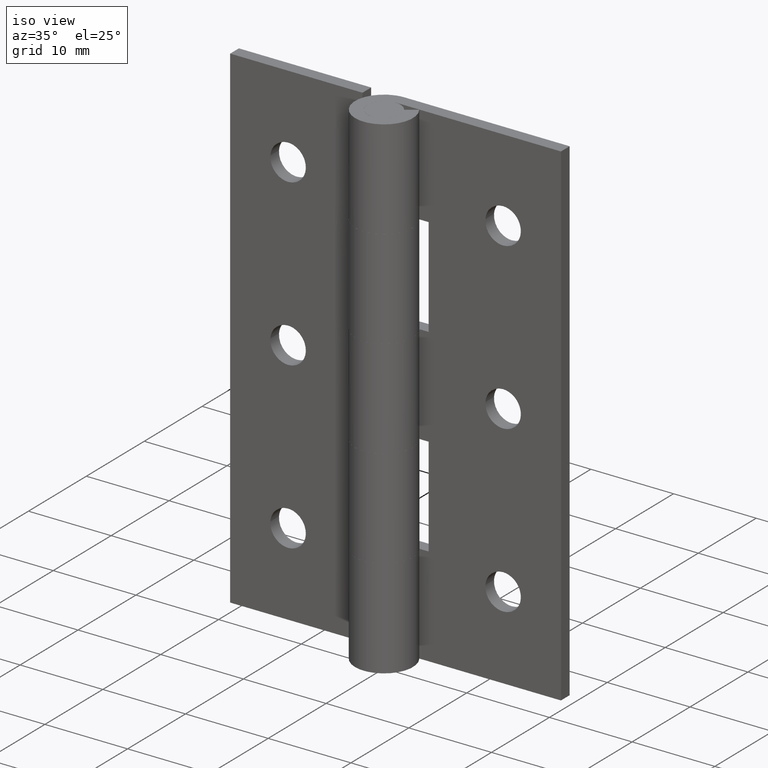
[diagram: clean part render]
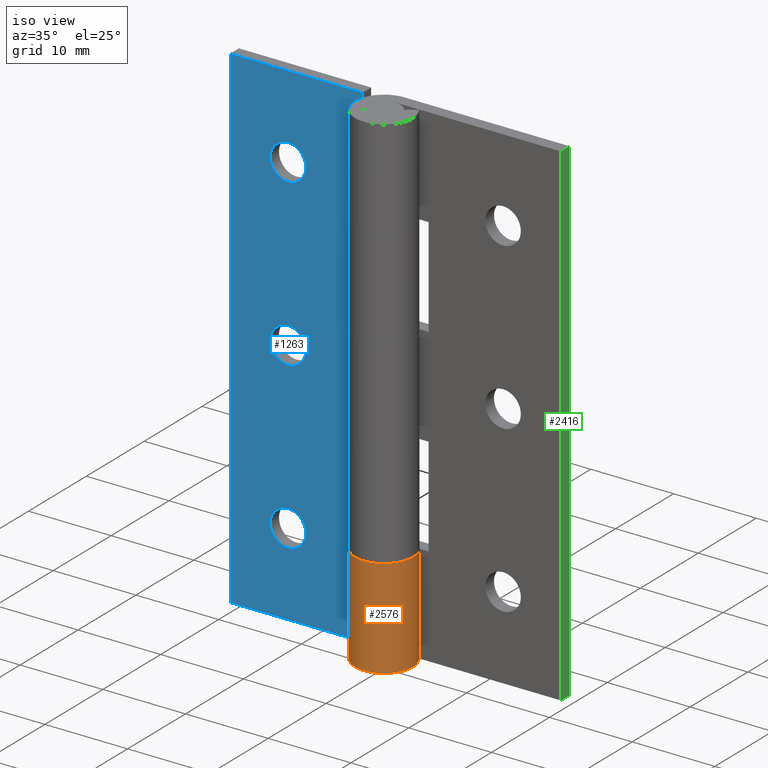
[diagram: same view with three faces highlighted in distinct colors, each labeled with its STEP entity id]
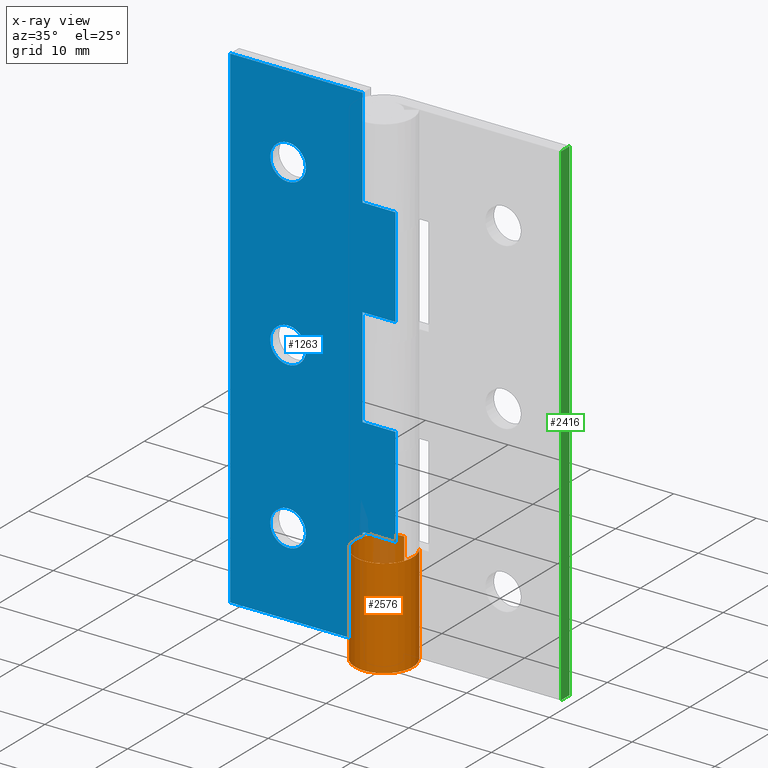
[diagram: x-ray of the same camera — body ghosted, the three highlighted faces saturated]
A machine part, iso view with three faces highlighted in distinct colors.
The next image is the same camera in x-ray (body ghosted, the three faces saturated) — at least one of them is partly hidden behind the body in this view.
Their STEP definitions:

[orange] entity #2576 — the highlighted face is a freeform B-spline surface patch.
#2001=CARTESIAN_POINT('',(0.0,3.499999999999950,12.0));
#2002=VERTEX_POINT('',#2001);
#2008=CARTESIAN_POINT('',(2.906458325866720,1.950000000000000,12.0));
#2009=VERTEX_POINT('',#2008);
#2010=CARTESIAN_POINT('',(2.906458325866722,1.950000000000003,12.0));
#2011=CARTESIAN_POINT('',(4.428995672699895,-0.319328896485279,11.999999999999998));
#2012=CARTESIAN_POINT('',(2.596662639363708,-2.346772919848170,12.0));
#2013=CARTESIAN_POINT('',(0.764329606027520,-4.374216943211063,11.999999999999998));
#2014=CARTESIAN_POINT('',(-1.646966909200061,-3.088284313336452,12.0));
#2015=CARTESIAN_POINT('',(-4.058263424427636,-1.802351683461844,11.999999999999998));
#2016=CARTESIAN_POINT('',(-3.395511382448717,0.848824158269075,12.0));
#2017=CARTESIAN_POINT('',(-2.732759340469794,3.500000000000000,11.999999999999998));
#2018=CARTESIAN_POINT('',(0.0,3.499999999999950,12.0));
#2026=(BOUNDED_CURVE()B_SPLINE_CURVE(2,(#2010,#2011,#2012,#2013,#2014,#2015,#2016,#2017,#2018),.UNSPECIFIED.,.F.,.U.)B_SPLINE_CURVE_WITH_KNOTS((3,2,2,2,3),(0.0,0.250000000000000,0.500000000000000,0.750000000000000,1.0),.UNSPECIFIED.)CURVE()GEOMETRIC_REPRESENTATION_ITEM()RATIONAL_B_SPLINE_CURVE((1.0,0.788200858942973,1.0,0.788200858942973,1.0,0.788200858942973,1.0,0.788200858942973,1.0))REPRESENTATION_ITEM(''));
#2027=EDGE_CURVE('',#2009,#2002,#2026,.T.);
#2246=CARTESIAN_POINT('',(-6.429183E-016,3.500000000000000,0.0));
#2247=VERTEX_POINT('',#2246);
#2290=CARTESIAN_POINT('',(2.906458325866720,1.950000000000000,0.0));
#2291=VERTEX_POINT('',#2290);
#2297=CARTESIAN_POINT('',(2.906458325866722,1.950000000000003,0.0));
#2298=CARTESIAN_POINT('',(4.428995672699895,-0.319328896485279,0.0));
#2299=CARTESIAN_POINT('',(2.596662639363708,-2.346772919848170,0.0));
#2300=CARTESIAN_POINT('',(0.764329606027520,-4.374216943211063,0.0));
#2301=CARTESIAN_POINT('',(-1.646966909200061,-3.088284313336452,0.0));
#2302=CARTESIAN_POINT('',(-4.058263424427636,-1.802351683461844,0.0));
#2303=CARTESIAN_POINT('',(-3.395511382448717,0.848824158269075,0.0));
#2304=CARTESIAN_POINT('',(-2.732759340469794,3.500000000000000,0.0));
#2305=CARTESIAN_POINT('',(0.0,3.500000000000000,0.0));
#2313=(BOUNDED_CURVE()B_SPLINE_CURVE(2,(#2297,#2298,#2299,#2300,#2301,#2302,#2303,#2304,#2305),.UNSPECIFIED.,.F.,.U.)B_SPLINE_CURVE_WITH_KNOTS((3,2,2,2,3),(0.0,0.250000000000000,0.500000000000000,0.750000000000000,1.0),.UNSPECIFIED.)CURVE()GEOMETRIC_REPRESENTATION_ITEM()RATIONAL_B_SPLINE_CURVE((1.0,0.788200858942973,1.0,0.788200858942973,1.0,0.788200858942973,1.0,0.788200858942973,1.0))REPRESENTATION_ITEM(''));
#2314=EDGE_CURVE('',#2291,#2247,#2313,.T.);
#2540=CARTESIAN_POINT('',(0.030542874244306,3.499866730724598,12.300000000000001));
#2541=CARTESIAN_POINT('',(0.030542874244306,3.499866730724598,-0.307500000000001));
#2542=CARTESIAN_POINT('',(-4.317231317146725,3.537809181276936,12.300000000000001));
#2543=CARTESIAN_POINT('',(-4.317231317146725,3.537809181276936,-0.307500000000001));
#2544=CARTESIAN_POINT('',(-3.425618882463447,-0.717729247077107,12.300000000000001));
#2545=CARTESIAN_POINT('',(-3.425618882463447,-0.717729247077107,-0.307500000000001));
#2546=CARTESIAN_POINT('',(-2.534006447780170,-4.973267675431151,12.300000000000001));
#2547=CARTESIAN_POINT('',(-2.534006447780170,-4.973267675431151,-0.307500000000001));
#2548=CARTESIAN_POINT('',(1.432873100841322,-3.193254558735548,12.300000000000001));
#2549=CARTESIAN_POINT('',(1.432873100841322,-3.193254558735548,-0.307500000000001));
#2550=CARTESIAN_POINT('',(5.399752649462814,-1.413241442039946,12.300000000000001));
#2551=CARTESIAN_POINT('',(5.399752649462814,-1.413241442039946,-0.307500000000001));
#2552=CARTESIAN_POINT('',(2.813499012160261,2.081879753629691,12.300000000000001));
#2553=CARTESIAN_POINT('',(2.813499012160261,2.081879753629691,-0.307500000000001));
#2561=(BOUNDED_SURFACE()B_SPLINE_SURFACE(1,2,((#2540,#2542,#2544,#2546,#2548,#2550,#2552),(#2541,#2543,#2545,#2547,#2549,#2551,#2553)),.UNSPECIFIED.,.F.,.F.,.U.)B_SPLINE_SURFACE_WITH_KNOTS((2,2),(3,2,2,3),(0.0,12.607500000000000),(0.0,6.702669511647942,13.405339023295880,20.108008534943831),.UNSPECIFIED.)GEOMETRIC_REPRESENTATION_ITEM()RATIONAL_B_SPLINE_SURFACE(((1.0,0.627057105746662,1.0,0.627057105746662,1.0,0.627057105746662,1.0),(1.0,0.627057105746662,1.0,0.627057105746662,1.0,0.627057105746662,1.0)))REPRESENTATION_ITEM('')SURFACE());
#2562=ORIENTED_EDGE('',*,*,#2027,.T.);
#2563=CARTESIAN_POINT('',(0.0,3.499999999999950,12.0));
#2564=CARTESIAN_POINT('',(-6.429183E-016,3.500000000000000,0.0));
#2565=QUASI_UNIFORM_CURVE('',1,(#2563,#2564),.UNSPECIFIED.,.F.,.U.);
#2566=EDGE_CURVE('',#2002,#2247,#2565,.T.);
#2567=ORIENTED_EDGE('',*,*,#2566,.T.);
#2568=ORIENTED_EDGE('',*,*,#2314,.F.);
#2569=CARTESIAN_POINT('',(2.906458325866720,1.950000000000000,12.0));
#2570=CARTESIAN_POINT('',(2.906458325866720,1.950000000000000,0.0));
#2571=QUASI_UNIFORM_CURVE('',1,(#2569,#2570),.UNSPECIFIED.,.F.,.U.);
#2572=EDGE_CURVE('',#2009,#2291,#2571,.T.);
#2573=ORIENTED_EDGE('',*,*,#2572,.F.);
#2574=EDGE_LOOP('',(#2562,#2567,#2568,#2573));
#2575=FACE_OUTER_BOUND('',#2574,.T.);
#2576=ADVANCED_FACE('',(#2575),#2561,.T.);

[blue] entity #1263 — the highlighted face is a freeform B-spline surface patch.
#62=CARTESIAN_POINT('',(-12.999999999999799,2.0,52.149999999999999));
#63=VERTEX_POINT('',#62);
#64=CARTESIAN_POINT('',(-15.143372267521089,2.0,50.168687055877513));
#65=VERTEX_POINT('',#64);
#66=CARTESIAN_POINT('',(-12.999999999999799,2.0,52.149999999999999));
#67=CARTESIAN_POINT('',(-14.987439556948406,2.000000000000000,52.150000000000013));
#68=CARTESIAN_POINT('',(-15.143372267521098,2.000000000000000,50.168687055877506));
#76=(BOUNDED_CURVE()B_SPLINE_CURVE(2,(#66,#67,#68),.UNSPECIFIED.,.F.,.U.)B_SPLINE_CURVE_WITH_KNOTS((3,3),(0.0,0.236331300622746),.UNSPECIFIED.)CURVE()GEOMETRIC_REPRESENTATION_ITEM()RATIONAL_B_SPLINE_CURVE((1.0,0.723120658616937,0.969723356150903))REPRESENTATION_ITEM(''));
#77=EDGE_CURVE('',#63,#65,#76,.T.);
#118=CARTESIAN_POINT('',(-10.856627732478509,2.0,49.831312944122480));
#119=VERTEX_POINT('',#118);
#125=CARTESIAN_POINT('',(-10.856627732478506,2.0,49.831312944122480));
#126=CARTESIAN_POINT('',(-10.849999999999799,2.000000000000000,49.915526269870576));
#127=CARTESIAN_POINT('',(-10.849999999999801,2.0,50.0));
#128=CARTESIAN_POINT('',(-10.849999999999801,2.0,52.149999999999999));
#129=CARTESIAN_POINT('',(-12.999999999999799,2.0,52.149999999999999));
#137=(BOUNDED_CURVE()B_SPLINE_CURVE(2,(#125,#126,#127,#128,#129),.UNSPECIFIED.,.F.,.U.)B_SPLINE_CURVE_WITH_KNOTS((3,2,3),(0.736331300622745,0.750000000000000,1.0),.UNSPECIFIED.)CURVE()GEOMETRIC_REPRESENTATION_ITEM()RATIONAL_B_SPLINE_CURVE((0.969723356150902,0.983986122569610,1.0,0.707106781186547,1.0))REPRESENTATION_ITEM(''));
#138=EDGE_CURVE('',#119,#63,#137,.T.);
#161=CARTESIAN_POINT('',(-12.999999999999799,2.0,47.850000000000001));
#162=VERTEX_POINT('',#161);
#163=CARTESIAN_POINT('',(-15.143372267521091,2.000000000000000,50.168687055877513));
#164=CARTESIAN_POINT('',(-15.149999999999805,2.000000000000000,50.084473730129424));
#165=CARTESIAN_POINT('',(-15.149999999999800,2.0,50.0));
#166=CARTESIAN_POINT('',(-15.149999999999796,2.0,47.849999999999994));
#167=CARTESIAN_POINT('',(-12.999999999999799,2.0,47.850000000000001));
#175=(BOUNDED_CURVE()B_SPLINE_CURVE(2,(#163,#164,#165,#166,#167),.UNSPECIFIED.,.F.,.U.)B_SPLINE_CURVE_WITH_KNOTS((3,2,3),(0.236331300622746,0.250000000000000,0.500000000000000),.UNSPECIFIED.)CURVE()GEOMETRIC_REPRESENTATION_ITEM()RATIONAL_B_SPLINE_CURVE((0.969723356150903,0.983986122569611,1.0,0.707106781186547,1.0))REPRESENTATION_ITEM(''));
#176=EDGE_CURVE('',#65,#162,#175,.T.);
#178=CARTESIAN_POINT('',(-12.999999999999799,2.0,47.850000000000001));
#179=CARTESIAN_POINT('',(-11.012560443051203,2.000000000000000,47.849999999999994));
#180=CARTESIAN_POINT('',(-10.856627732478504,2.000000000000000,49.831312944122480));
#188=(BOUNDED_CURVE()B_SPLINE_CURVE(2,(#178,#179,#180),.UNSPECIFIED.,.F.,.U.)B_SPLINE_CURVE_WITH_KNOTS((3,3),(0.500000000000000,0.736331300622745),.UNSPECIFIED.)CURVE()GEOMETRIC_REPRESENTATION_ITEM()RATIONAL_B_SPLINE_CURVE((1.0,0.723120658616938,0.969723356150901))REPRESENTATION_ITEM(''));
#189=EDGE_CURVE('',#162,#119,#188,.T.);
#244=CARTESIAN_POINT('',(-12.999999999999799,2.0,32.149999999999999));
#245=VERTEX_POINT('',#244);
#246=CARTESIAN_POINT('',(-15.143372267521089,2.0,30.168687055877520));
#247=VERTEX_POINT('',#246);
#248=CARTESIAN_POINT('',(-12.999999999999799,2.0,32.149999999999999));
#249=CARTESIAN_POINT('',(-14.987439556948406,2.000000000000000,32.150000000000006));
#250=CARTESIAN_POINT('',(-15.143372267521094,2.000000000000000,30.168687055877523));
#258=(BOUNDED_CURVE()B_SPLINE_CURVE(2,(#248,#249,#250),.UNSPECIFIED.,.F.,.U.)B_SPLINE_CURVE_WITH_KNOTS((3,3),(0.0,0.236331300622746),.UNSPECIFIED.)CURVE()GEOMETRIC_REPRESENTATION_ITEM()RATIONAL_B_SPLINE_CURVE((1.0,0.723120658616937,0.969723356150902))REPRESENTATION_ITEM(''));
#259=EDGE_CURVE('',#245,#247,#258,.T.);
#300=CARTESIAN_POINT('',(-10.856627732478509,2.0,29.831312944122480));
#301=VERTEX_POINT('',#300);
#307=CARTESIAN_POINT('',(-10.856627732478506,2.0,29.831312944122487));
#308=CARTESIAN_POINT('',(-10.849999999999799,2.000000000000000,29.915526269870572));
#309=CARTESIAN_POINT('',(-10.849999999999801,2.0,30.0));
#310=CARTESIAN_POINT('',(-10.849999999999801,2.0,32.149999999999999));
#311=CARTESIAN_POINT('',(-12.999999999999799,2.0,32.149999999999999));
#319=(BOUNDED_CURVE()B_SPLINE_CURVE(2,(#307,#308,#309,#310,#311),.UNSPECIFIED.,.F.,.U.)B_SPLINE_CURVE_WITH_KNOTS((3,2,3),(0.736331300622745,0.750000000000000,1.0),.UNSPECIFIED.)CURVE()GEOMETRIC_REPRESENTATION_ITEM()RATIONAL_B_SPLINE_CURVE((0.969723356150902,0.983986122569610,1.0,0.707106781186547,1.0))REPRESENTATION_ITEM(''));
#320=EDGE_CURVE('',#301,#245,#319,.T.);
#343=CARTESIAN_POINT('',(-12.999999999999799,2.0,27.850000000000001));
#344=VERTEX_POINT('',#343);
#345=CARTESIAN_POINT('',(-15.143372267521096,2.000000000000000,30.168687055877527));
#346=CARTESIAN_POINT('',(-15.149999999999805,2.0,30.084473730129432));
#347=CARTESIAN_POINT('',(-15.149999999999800,2.0,30.0));
#348=CARTESIAN_POINT('',(-15.149999999999796,2.0,27.850000000000005));
#349=CARTESIAN_POINT('',(-12.999999999999799,2.0,27.850000000000001));
#357=(BOUNDED_CURVE()B_SPLINE_CURVE(2,(#345,#346,#347,#348,#349),.UNSPECIFIED.,.F.,.U.)B_SPLINE_CURVE_WITH_KNOTS((3,2,3),(0.236331300622746,0.250000000000000,0.500000000000000),.UNSPECIFIED.)CURVE()GEOMETRIC_REPRESENTATION_ITEM()RATIONAL_B_SPLINE_CURVE((0.969723356150902,0.983986122569610,1.0,0.707106781186547,1.0))REPRESENTATION_ITEM(''));
#358=EDGE_CURVE('',#247,#344,#357,.T.);
#360=CARTESIAN_POINT('',(-12.999999999999799,2.0,27.850000000000001));
#361=CARTESIAN_POINT('',(-11.012560443051203,2.000000000000000,27.849999999999998));
#362=CARTESIAN_POINT('',(-10.856627732478504,2.000000000000000,29.831312944122477));
#370=(BOUNDED_CURVE()B_SPLINE_CURVE(2,(#360,#361,#362),.UNSPECIFIED.,.F.,.U.)B_SPLINE_CURVE_WITH_KNOTS((3,3),(0.500000000000000,0.736331300622745),.UNSPECIFIED.)CURVE()GEOMETRIC_REPRESENTATION_ITEM()RATIONAL_B_SPLINE_CURVE((1.0,0.723120658616938,0.969723356150901))REPRESENTATION_ITEM(''));
#371=EDGE_CURVE('',#344,#301,#370,.T.);
#426=CARTESIAN_POINT('',(-12.999999999999799,2.0,12.150000000000000));
#427=VERTEX_POINT('',#426);
#428=CARTESIAN_POINT('',(-15.143372267521089,2.0,10.168687055877520));
#429=VERTEX_POINT('',#428);
#430=CARTESIAN_POINT('',(-12.999999999999799,2.0,12.150000000000000));
#431=CARTESIAN_POINT('',(-14.987439556948408,1.999999999999999,12.150000000000002));
#432=CARTESIAN_POINT('',(-15.143372267521093,2.0,10.168687055877516));
#440=(BOUNDED_CURVE()B_SPLINE_CURVE(2,(#430,#431,#432),.UNSPECIFIED.,.F.,.U.)B_SPLINE_CURVE_WITH_KNOTS((3,3),(0.0,0.236331300622746),.UNSPECIFIED.)CURVE()GEOMETRIC_REPRESENTATION_ITEM()RATIONAL_B_SPLINE_CURVE((1.0,0.723120658616937,0.969723356150902))REPRESENTATION_ITEM(''));
#441=EDGE_CURVE('',#427,#429,#440,.T.);
#482=CARTESIAN_POINT('',(-10.856627732478501,2.0,9.831312944122484));
#483=VERTEX_POINT('',#482);
#489=CARTESIAN_POINT('',(-10.856627732478509,2.000000000000000,9.831312944122484));
#490=CARTESIAN_POINT('',(-10.849999999999804,2.000000000000000,9.915526269870572));
#491=CARTESIAN_POINT('',(-10.849999999999801,2.0,10.0));
#492=CARTESIAN_POINT('',(-10.849999999999801,2.0,12.150000000000000));
#493=CARTESIAN_POINT('',(-12.999999999999799,2.0,12.150000000000000));
#501=(BOUNDED_CURVE()B_SPLINE_CURVE(2,(#489,#490,#491,#492,#493),.UNSPECIFIED.,.F.,.U.)B_SPLINE_CURVE_WITH_KNOTS((3,2,3),(0.736331300622746,0.750000000000000,1.0),.UNSPECIFIED.)CURVE()GEOMETRIC_REPRESENTATION_ITEM()RATIONAL_B_SPLINE_CURVE((0.969723356150902,0.983986122569610,1.0,0.707106781186547,1.0))REPRESENTATION_ITEM(''));
#502=EDGE_CURVE('',#483,#427,#501,.T.);
#525=CARTESIAN_POINT('',(-12.999999999999799,2.0,7.850000000000000));
#526=VERTEX_POINT('',#525);
#527=CARTESIAN_POINT('',(-15.143372267521094,2.000000000000000,10.168687055877516));
#528=CARTESIAN_POINT('',(-15.149999999999803,2.000000000000000,10.084473730129428));
#529=CARTESIAN_POINT('',(-15.149999999999800,2.0,10.0));
#530=CARTESIAN_POINT('',(-15.149999999999796,2.0,7.849999999999999));
#531=CARTESIAN_POINT('',(-12.999999999999799,2.0,7.850000000000000));
#539=(BOUNDED_CURVE()B_SPLINE_CURVE(2,(#527,#528,#529,#530,#531),.UNSPECIFIED.,.F.,.U.)B_SPLINE_CURVE_WITH_KNOTS((3,2,3),(0.236331300622746,0.250000000000000,0.500000000000000),.UNSPECIFIED.)CURVE()GEOMETRIC_REPRESENTATION_ITEM()RATIONAL_B_SPLINE_CURVE((0.969723356150902,0.983986122569610,1.0,0.707106781186547,1.0))REPRESENTATION_ITEM(''));
#540=EDGE_CURVE('',#429,#526,#539,.T.);
#542=CARTESIAN_POINT('',(-12.999999999999799,2.0,7.850000000000000));
#543=CARTESIAN_POINT('',(-11.012560443051203,2.000000000000000,7.849999999999999));
#544=CARTESIAN_POINT('',(-10.856627732478504,2.000000000000000,9.831312944122484));
#552=(BOUNDED_CURVE()B_SPLINE_CURVE(2,(#542,#543,#544),.UNSPECIFIED.,.F.,.U.)B_SPLINE_CURVE_WITH_KNOTS((3,3),(0.500000000000000,0.736331300622745),.UNSPECIFIED.)CURVE()GEOMETRIC_REPRESENTATION_ITEM()RATIONAL_B_SPLINE_CURVE((1.0,0.723120658616938,0.969723356150901))REPRESENTATION_ITEM(''));
#553=EDGE_CURVE('',#526,#483,#552,.T.);
#625=CARTESIAN_POINT('',(-3.999999999999800,2.0,24.0));
#626=VERTEX_POINT('',#625);
#632=CARTESIAN_POINT('',(1.224624E-016,2.0,24.0));
#633=VERTEX_POINT('',#632);
#634=CARTESIAN_POINT('',(-3.999999999999800,2.0,24.0));
#635=CARTESIAN_POINT('',(1.224624E-016,2.0,24.0));
#636=QUASI_UNIFORM_CURVE('',1,(#634,#635),.UNSPECIFIED.,.F.,.U.);
#637=EDGE_CURVE('',#626,#633,#636,.T.);
#703=CARTESIAN_POINT('',(1.224624E-016,2.0,36.0));
#704=VERTEX_POINT('',#703);
#724=CARTESIAN_POINT('',(-3.999999999999800,2.0,36.0));
#725=VERTEX_POINT('',#724);
#726=CARTESIAN_POINT('',(1.224624E-016,2.0,36.0));
#727=CARTESIAN_POINT('',(-3.999999999999800,2.0,36.0));
#728=QUASI_UNIFORM_CURVE('',1,(#726,#727),.UNSPECIFIED.,.F.,.U.);
#729=EDGE_CURVE('',#704,#725,#728,.T.);
#751=CARTESIAN_POINT('',(-3.999999999999800,2.0,36.0));
#752=CARTESIAN_POINT('',(-3.999999999999800,2.0,24.0));
#753=QUASI_UNIFORM_CURVE('',1,(#751,#752),.UNSPECIFIED.,.F.,.U.);
#754=EDGE_CURVE('',#725,#626,#753,.T.);
#801=CARTESIAN_POINT('',(1.224624E-016,2.0,12.0));
#802=VERTEX_POINT('',#801);
#822=CARTESIAN_POINT('',(-3.999999999999800,2.0,12.0));
#823=VERTEX_POINT('',#822);
#824=CARTESIAN_POINT('',(-3.999999999999800,2.0,12.0));
#825=CARTESIAN_POINT('',(1.224624E-016,2.0,12.0));
#826=QUASI_UNIFORM_CURVE('',1,(#824,#825),.UNSPECIFIED.,.F.,.U.);
#827=EDGE_CURVE('',#823,#802,#826,.T.);
#849=CARTESIAN_POINT('',(-3.999999999999800,2.0,0.0));
#850=VERTEX_POINT('',#849);
#864=CARTESIAN_POINT('',(-3.999999999999800,2.0,0.0));
#865=CARTESIAN_POINT('',(-3.999999999999800,2.0,12.0));
#866=QUASI_UNIFORM_CURVE('',1,(#864,#865),.UNSPECIFIED.,.F.,.U.);
#867=EDGE_CURVE('',#850,#823,#866,.T.);
#886=CARTESIAN_POINT('',(-3.999999999999800,2.0,48.0));
#887=VERTEX_POINT('',#886);
#893=CARTESIAN_POINT('',(1.224624E-016,2.0,48.0));
#894=VERTEX_POINT('',#893);
#895=CARTESIAN_POINT('',(1.224624E-016,2.0,48.0));
#896=CARTESIAN_POINT('',(-3.999999999999800,2.0,48.0));
#897=QUASI_UNIFORM_CURVE('',1,(#895,#896),.UNSPECIFIED.,.F.,.U.);
#898=EDGE_CURVE('',#894,#887,#897,.T.);
#963=CARTESIAN_POINT('',(-3.999999999999800,2.0,60.0));
#964=VERTEX_POINT('',#963);
#970=CARTESIAN_POINT('',(-3.999999999999800,2.0,48.0));
#971=CARTESIAN_POINT('',(-3.999999999999800,2.0,60.0));
#972=QUASI_UNIFORM_CURVE('',1,(#970,#971),.UNSPECIFIED.,.F.,.U.);
#973=EDGE_CURVE('',#887,#964,#972,.T.);
#983=CARTESIAN_POINT('',(-20.0,2.0,0.0));
#984=VERTEX_POINT('',#983);
#992=CARTESIAN_POINT('',(-20.0,2.0,60.0));
#993=VERTEX_POINT('',#992);
#994=CARTESIAN_POINT('',(-20.0,2.0,60.0));
#995=CARTESIAN_POINT('',(-20.0,2.0,0.0));
#996=QUASI_UNIFORM_CURVE('',1,(#994,#995),.UNSPECIFIED.,.F.,.U.);
#997=EDGE_CURVE('',#993,#984,#996,.T.);
#1026=CARTESIAN_POINT('',(-3.999999999999800,2.0,60.0));
#1027=CARTESIAN_POINT('',(-20.0,2.0,60.0));
#1028=QUASI_UNIFORM_CURVE('',1,(#1026,#1027),.UNSPECIFIED.,.F.,.U.);
#1029=EDGE_CURVE('',#964,#993,#1028,.T.);
#1045=CARTESIAN_POINT('',(-3.999999999999800,2.0,0.0));
#1046=CARTESIAN_POINT('',(-20.0,2.0,0.0));
#1047=QUASI_UNIFORM_CURVE('',1,(#1045,#1046),.UNSPECIFIED.,.F.,.U.);
#1048=EDGE_CURVE('',#850,#984,#1047,.T.);
#1082=CARTESIAN_POINT('',(1.224624E-016,2.0,24.0));
#1083=CARTESIAN_POINT('',(1.224624E-016,2.0,12.0));
#1084=QUASI_UNIFORM_CURVE('',1,(#1082,#1083),.UNSPECIFIED.,.F.,.U.);
#1085=EDGE_CURVE('',#633,#802,#1084,.T.);
#1166=CARTESIAN_POINT('',(1.224624E-016,2.0,48.0));
#1167=CARTESIAN_POINT('',(1.224624E-016,2.0,36.0));
#1168=QUASI_UNIFORM_CURVE('',1,(#1166,#1167),.UNSPECIFIED.,.F.,.U.);
#1169=EDGE_CURVE('',#894,#704,#1168,.T.);
#1226=CARTESIAN_POINT('',(-20.998999961236120,2.0,62.996999883708362));
#1227=CARTESIAN_POINT('',(-20.998999961236120,2.0,-2.997001493033767));
#1228=CARTESIAN_POINT('',(0.999000497677920,2.0,62.996999883708362));
#1229=CARTESIAN_POINT('',(0.999000497677920,2.0,-2.997001493033767));
#1230=B_SPLINE_SURFACE_WITH_KNOTS('',1,1,((#1226,#1228),(#1227,#1229)),.UNSPECIFIED.,.F.,.F.,.U.,(2,2),(2,2),(0.0,65.994001376742119),(0.0,21.998000458914039),.UNSPECIFIED.);
#1231=ORIENTED_EDGE('',*,*,#729,.F.);
#1232=ORIENTED_EDGE('',*,*,#1169,.F.);
#1233=ORIENTED_EDGE('',*,*,#898,.T.);
#1234=ORIENTED_EDGE('',*,*,#973,.T.);
#1235=ORIENTED_EDGE('',*,*,#1029,.T.);
#1236=ORIENTED_EDGE('',*,*,#997,.T.);
#1237=ORIENTED_EDGE('',*,*,#1048,.F.);
#1238=ORIENTED_EDGE('',*,*,#867,.T.);
#1239=ORIENTED_EDGE('',*,*,#827,.T.);
#1240=ORIENTED_EDGE('',*,*,#1085,.F.);
#1241=ORIENTED_EDGE('',*,*,#637,.F.);
#1242=ORIENTED_EDGE('',*,*,#754,.F.);
#1243=EDGE_LOOP('',(#1231,#1232,#1233,#1234,#1235,#1236,#1237,#1238,#1239,#1240,#1241,#1242));
#1244=FACE_OUTER_BOUND('',#1243,.T.);
#1245=ORIENTED_EDGE('',*,*,#553,.F.);
#1246=ORIENTED_EDGE('',*,*,#540,.F.);
#1247=ORIENTED_EDGE('',*,*,#441,.F.);
#1248=ORIENTED_EDGE('',*,*,#502,.F.);
#1249=EDGE_LOOP('',(#1245,#1246,#1247,#1248));
#1250=FACE_BOUND('',#1249,.T.);
#1251=ORIENTED_EDGE('',*,*,#371,.F.);
#1252=ORIENTED_EDGE('',*,*,#358,.F.);
#1253=ORIENTED_EDGE('',*,*,#259,.F.);
#1254=ORIENTED_EDGE('',*,*,#320,.F.);
#1255=EDGE_LOOP('',(#1251,#1252,#1253,#1254));
#1256=FACE_BOUND('',#1255,.T.);
#1257=ORIENTED_EDGE('',*,*,#189,.F.);
#1258=ORIENTED_EDGE('',*,*,#176,.F.);
#1259=ORIENTED_EDGE('',*,*,#77,.F.);
#1260=ORIENTED_EDGE('',*,*,#138,.F.);
#1261=EDGE_LOOP('',(#1257,#1258,#1259,#1260));
#1262=FACE_BOUND('',#1261,.T.);
#1263=ADVANCED_FACE('',(#1244,#1250,#1256,#1262),#1230,.T.);

[green] entity #2416 — the highlighted face is a freeform B-spline surface patch.
#2248=CARTESIAN_POINT('',(20.0,3.500000000000000,0.0));
#2249=VERTEX_POINT('',#2248);
#2255=CARTESIAN_POINT('',(20.0,2.0,0.0));
#2256=VERTEX_POINT('',#2255);
#2257=CARTESIAN_POINT('',(20.0,3.500000000000000,0.0));
#2258=CARTESIAN_POINT('',(20.0,2.0,0.0));
#2259=QUASI_UNIFORM_CURVE('',1,(#2257,#2258),.UNSPECIFIED.,.F.,.U.);
#2260=EDGE_CURVE('',#2249,#2256,#2259,.T.);
#2326=CARTESIAN_POINT('',(20.0,3.500000000000000,60.0));
#2327=VERTEX_POINT('',#2326);
#2382=CARTESIAN_POINT('',(20.0,2.0,60.0));
#2383=VERTEX_POINT('',#2382);
#2389=CARTESIAN_POINT('',(20.0,3.500000000000000,60.0));
#2390=CARTESIAN_POINT('',(20.0,2.0,60.0));
#2391=QUASI_UNIFORM_CURVE('',1,(#2389,#2390),.UNSPECIFIED.,.F.,.U.);
#2392=EDGE_CURVE('',#2327,#2383,#2391,.T.);
#2397=CARTESIAN_POINT('',(20.0,1.925075002907291,62.996999883708362));
#2398=CARTESIAN_POINT('',(20.0,1.925075002907291,-2.997001493033767));
#2399=CARTESIAN_POINT('',(20.0,3.574925037325845,62.996999883708362));
#2400=CARTESIAN_POINT('',(20.0,3.574925037325845,-2.997001493033767));
#2401=B_SPLINE_SURFACE_WITH_KNOTS('',1,1,((#2397,#2399),(#2398,#2400)),.UNSPECIFIED.,.F.,.F.,.U.,(2,2),(2,2),(0.0,65.994001376742119),(0.041708334948495,0.958291687403247),.UNSPECIFIED.);
#2402=ORIENTED_EDGE('',*,*,#2260,.F.);
#2403=CARTESIAN_POINT('',(20.0,3.500000000000000,60.0));
#2404=CARTESIAN_POINT('',(20.0,3.500000000000000,0.0));
#2405=QUASI_UNIFORM_CURVE('',1,(#2403,#2404),.UNSPECIFIED.,.F.,.U.);
#2406=EDGE_CURVE('',#2327,#2249,#2405,.T.);
#2407=ORIENTED_EDGE('',*,*,#2406,.F.);
#2408=ORIENTED_EDGE('',*,*,#2392,.T.);
#2409=CARTESIAN_POINT('',(20.0,2.0,60.0));
#2410=CARTESIAN_POINT('',(20.0,2.0,0.0));
#2411=QUASI_UNIFORM_CURVE('',1,(#2409,#2410),.UNSPECIFIED.,.F.,.U.);
#2412=EDGE_CURVE('',#2383,#2256,#2411,.T.);
#2413=ORIENTED_EDGE('',*,*,#2412,.T.);
#2414=EDGE_LOOP('',(#2402,#2407,#2408,#2413));
#2415=FACE_OUTER_BOUND('',#2414,.T.);
#2416=ADVANCED_FACE('',(#2415),#2401,.T.);